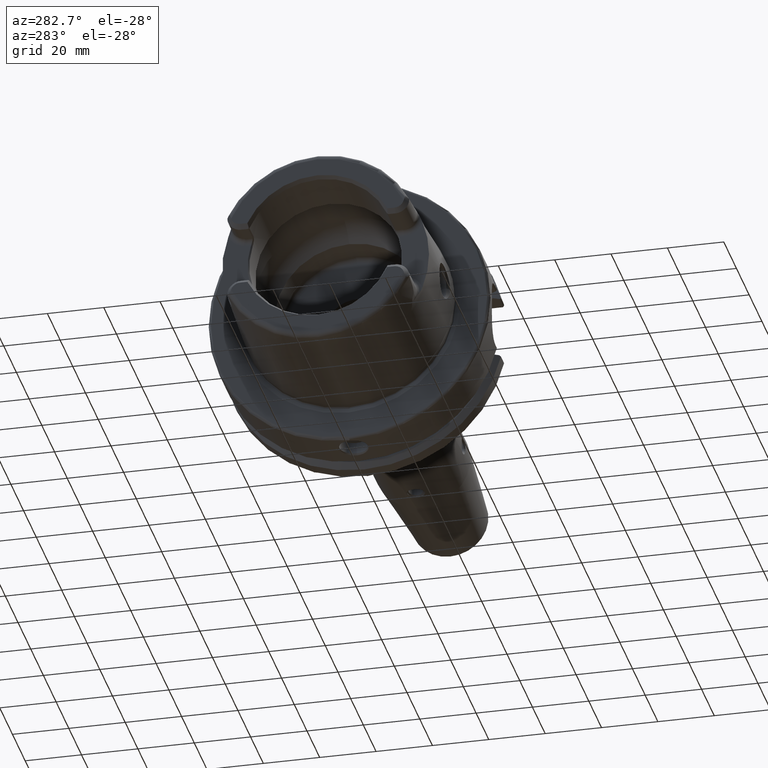
[diagram: clean part render]
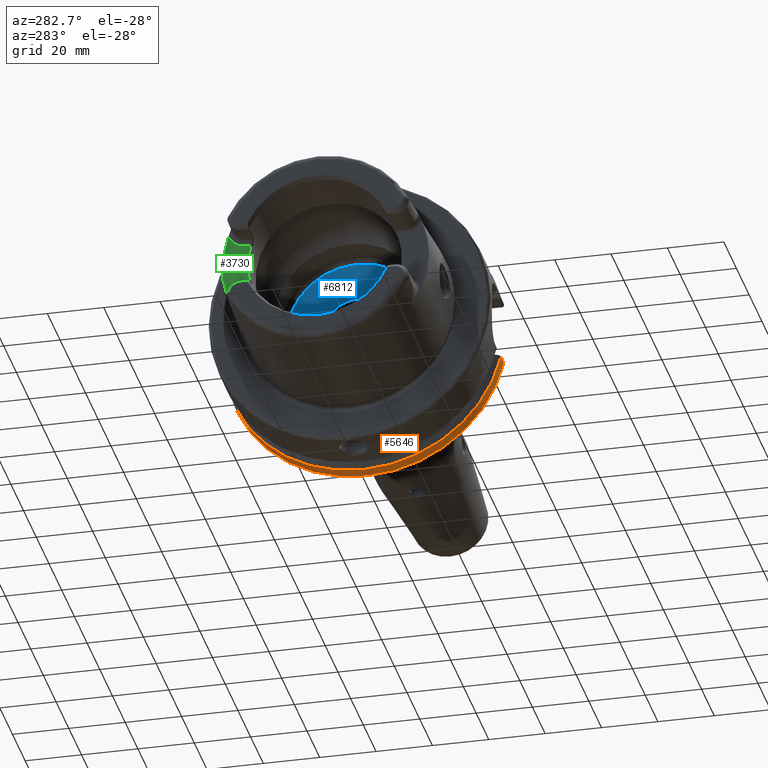
[diagram: same view with three faces highlighted in distinct colors, each labeled with its STEP entity id]
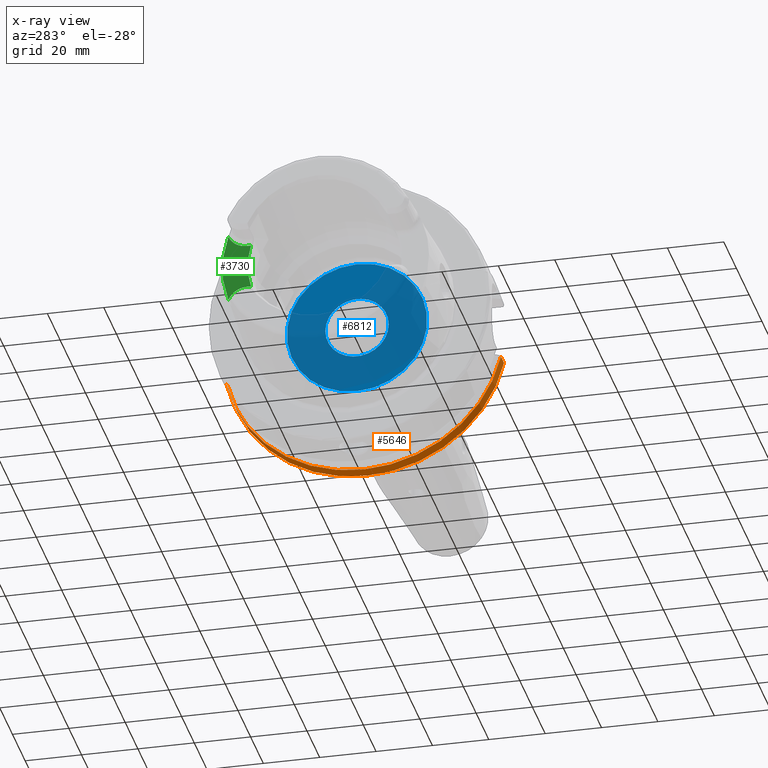
[diagram: x-ray of the same camera — body ghosted, the three highlighted faces saturated]
A machine part, auxiliary view with three faces highlighted in distinct colors.
The next image is the same camera in x-ray (body ghosted, the three faces saturated) — at least one of them is partly hidden behind the body in this view.
Their STEP definitions:

[orange] entity #5646 — the highlighted cylindrical surface (partial cylindrical patch) has radius 50 mm, axis along (1, 0, 0).
#1952=CARTESIAN_POINT('',(2.8E1,0.E0,0.E0));
#1953=DIRECTION('',(-1.E0,0.E0,0.E0));
#1954=DIRECTION('',(0.E0,9.781062299454E-1,-2.081062299454E-1));
#1955=AXIS2_PLACEMENT_3D('',#1952,#1953,#1954);
#1957=CARTESIAN_POINT('',(2.8E1,0.E0,0.E0));
#1958=DIRECTION('',(-1.E0,0.E0,0.E0));
#1959=DIRECTION('',(0.E0,0.E0,-1.E0));
#1960=AXIS2_PLACEMENT_3D('',#1957,#1958,#1959);
#1962=DIRECTION('',(-1.E0,-8.372686127246E-14,9.793052523832E-14));
#1963=VECTOR('',#1962,4.752404735809E0);
#1964=CARTESIAN_POINT('',(2.8E1,4.890531149727E1,-1.040531149727E1));
#1965=LINE('',#1964,#1963);
#1966=DIRECTION('',(1.E0,-1.270854144314E-13,8.933357073267E-14));
#1967=VECTOR('',#1966,4.752404735809E0);
#1968=CARTESIAN_POINT('',(2.324759526419E1,-4.866725793949E1,
-1.146725793949E1));
#1969=LINE('',#1968,#1967);
#2090=CARTESIAN_POINT('',(2.324759526419E1,0.E0,0.E0));
#2091=DIRECTION('',(1.E0,0.E0,0.E0));
#2092=DIRECTION('',(0.E0,-9.733451587899E-1,-2.293451587898E-1));
#2093=AXIS2_PLACEMENT_3D('',#2090,#2091,#2092);
#2095=CARTESIAN_POINT('',(2.324759526419E1,0.E0,0.E0));
#2096=DIRECTION('',(1.E0,0.E0,0.E0));
#2097=DIRECTION('',(0.E0,0.E0,-1.E0));
#2098=AXIS2_PLACEMENT_3D('',#2095,#2096,#2097);
#3250=CARTESIAN_POINT('',(2.8E1,4.890531149727E1,-1.040531149727E1));
#3251=CARTESIAN_POINT('',(2.8E1,-2.842170943040E-14,-5.E1));
#3252=VERTEX_POINT('',#3250);
#3253=VERTEX_POINT('',#3251);
#3254=CARTESIAN_POINT('',(2.8E1,-4.866725793949E1,-1.146725793949E1));
#3255=VERTEX_POINT('',#3254);
#3256=CARTESIAN_POINT('',(2.324759526419E1,4.890531149727E1,-1.040531149727E1));
#3257=VERTEX_POINT('',#3256);
#3258=CARTESIAN_POINT('',(2.324759526419E1,-4.866725793949E1,
-1.146725793949E1));
#3259=CARTESIAN_POINT('',(2.324759526419E1,-2.842170943040E-14,-5.E1));
#3260=VERTEX_POINT('',#3258);
#3261=VERTEX_POINT('',#3259);
#5629=CARTESIAN_POINT('',(0.E0,0.E0,0.E0));
#5630=DIRECTION('',(1.E0,0.E0,0.E0));
#5631=DIRECTION('',(0.E0,0.E0,1.E0));
#5632=AXIS2_PLACEMENT_3D('',#5629,#5630,#5631);
#5633=CYLINDRICAL_SURFACE('',#5632,5.E1);
#5634=ORIENTED_EDGE('',*,*,#5615,.F.);
#5635=ORIENTED_EDGE('',*,*,#5613,.F.);
#5637=ORIENTED_EDGE('',*,*,#5636,.T.);
#5639=ORIENTED_EDGE('',*,*,#5638,.F.);
#5641=ORIENTED_EDGE('',*,*,#5640,.F.);
#5643=ORIENTED_EDGE('',*,*,#5642,.T.);
#5644=EDGE_LOOP('',(#5634,#5635,#5637,#5639,#5641,#5643));
#5645=FACE_OUTER_BOUND('',#5644,.F.);
#5646=ADVANCED_FACE('',(#5645),#5633,.T.);
#1956=CIRCLE('',#1955,5.E1);
#1961=CIRCLE('',#1960,5.E1);
#2094=CIRCLE('',#2093,5.E1);
#2099=CIRCLE('',#2098,5.E1);
#5613=EDGE_CURVE('',#3252,#3253,#1956,.T.);
#5615=EDGE_CURVE('',#3253,#3255,#1961,.T.);
#5636=EDGE_CURVE('',#3252,#3257,#1965,.T.);
#5638=EDGE_CURVE('',#3261,#3257,#2099,.T.);
#5640=EDGE_CURVE('',#3260,#3261,#2094,.T.);
#5642=EDGE_CURVE('',#3260,#3255,#1969,.T.);

[blue] entity #6812 — the highlighted planar face has unit normal (1, 0, 0).
#2729=CARTESIAN_POINT('',(1.25E1,0.E0,0.E0));
#2730=DIRECTION('',(1.E0,0.E0,0.E0));
#2731=DIRECTION('',(0.E0,0.E0,1.E0));
#2732=AXIS2_PLACEMENT_3D('',#2729,#2730,#2731);
#2734=CARTESIAN_POINT('',(1.25E1,0.E0,0.E0));
#2735=DIRECTION('',(1.E0,0.E0,0.E0));
#2736=DIRECTION('',(0.E0,0.E0,-1.E0));
#2737=AXIS2_PLACEMENT_3D('',#2734,#2735,#2736);
#2739=CARTESIAN_POINT('',(1.25E1,0.E0,0.E0));
#2740=DIRECTION('',(-1.E0,0.E0,0.E0));
#2741=DIRECTION('',(0.E0,1.E0,0.E0));
#2742=AXIS2_PLACEMENT_3D('',#2739,#2740,#2741);
#2744=CARTESIAN_POINT('',(1.25E1,0.E0,0.E0));
#2745=DIRECTION('',(-1.E0,0.E0,0.E0));
#2746=DIRECTION('',(0.E0,-1.E0,0.E0));
#2747=AXIS2_PLACEMENT_3D('',#2744,#2745,#2746);
#3555=CARTESIAN_POINT('',(1.25E1,-1.125E1,0.E0));
#3556=VERTEX_POINT('',#3555);
#3557=CARTESIAN_POINT('',(1.25E1,1.125E1,0.E0));
#3558=VERTEX_POINT('',#3557);
#3559=CARTESIAN_POINT('',(1.25E1,0.E0,2.49E1));
#3560=CARTESIAN_POINT('',(1.25E1,0.E0,-2.49E1));
#3561=VERTEX_POINT('',#3559);
#3562=VERTEX_POINT('',#3560);
#6797=CARTESIAN_POINT('',(1.25E1,0.E0,0.E0));
#6798=DIRECTION('',(1.E0,0.E0,0.E0));
#6799=DIRECTION('',(0.E0,0.E0,1.E0));
#6800=AXIS2_PLACEMENT_3D('',#6797,#6798,#6799);
#6801=PLANE('',#6800);
#6803=ORIENTED_EDGE('',*,*,#6802,.T.);
#6805=ORIENTED_EDGE('',*,*,#6804,.T.);
#6806=EDGE_LOOP('',(#6803,#6805));
#6807=FACE_OUTER_BOUND('',#6806,.F.);
#6808=ORIENTED_EDGE('',*,*,#6777,.T.);
#6809=ORIENTED_EDGE('',*,*,#6791,.T.);
#6810=EDGE_LOOP('',(#6808,#6809));
#6811=FACE_BOUND('',#6810,.F.);
#6812=ADVANCED_FACE('',(#6807,#6811),#6801,.F.);
#2733=CIRCLE('',#2732,2.49E1);
#2738=CIRCLE('',#2737,2.49E1);
#2743=CIRCLE('',#2742,1.125E1);
#2748=CIRCLE('',#2747,1.125E1);
#6777=EDGE_CURVE('',#3558,#3556,#2743,.T.);
#6791=EDGE_CURVE('',#3556,#3558,#2748,.T.);
#6802=EDGE_CURVE('',#3561,#3562,#2733,.T.);
#6804=EDGE_CURVE('',#3562,#3561,#2738,.T.);

[green] entity #3730 — the highlighted planar face has unit normal (1, 0, 0).
#47=CARTESIAN_POINT('',(-4.E1,3.378887757492E1,1.241362953537E1));
#208=CARTESIAN_POINT('',(-4.E1,-3.108624468950E-13,-6.261657858886E-14));
#209=DIRECTION('',(-1.E0,0.E0,0.E0));
#210=DIRECTION('',(0.E0,9.549810813063E-1,2.966667058282E-1));
#211=AXIS2_PLACEMENT_3D('',#208,#209,#210);
#213=DIRECTION('',(-9.119444218507E-10,1.E0,3.151026424189E-7));
#214=VECTOR('',#213,1.585510683775E0);
#215=CARTESIAN_POINT('',(-3.999999999855E1,2.578448931815E1,-8.010000605217E0));
#216=LINE('',#215,#214);
#217=CARTESIAN_POINT('',(-4.E1,2.737E1,-1.489E1));
#218=DIRECTION('',(-1.E0,0.E0,0.E0));
#219=DIRECTION('',(0.E0,8.382070231703E-10,1.E0));
#220=AXIS2_PLACEMENT_3D('',#217,#218,#219);
#222=CARTESIAN_POINT('',(-4.E1,2.737E1,-1.489E1));
#223=DIRECTION('',(-1.E0,0.E0,0.E0));
#224=DIRECTION('',(0.E0,8.212570373432E-1,5.705583919410E-1));
#225=AXIS2_PLACEMENT_3D('',#222,#223,#224);
#227=CARTESIAN_POINT('',(-4.E1,0.E0,0.E0));
#228=DIRECTION('',(1.E0,0.E0,0.E0));
#229=DIRECTION('',(0.E0,9.386572714715E-1,-3.448514560120E-1));
#230=AXIS2_PLACEMENT_3D('',#227,#228,#229);
#232=CARTESIAN_POINT('',(-4.E1,2.737E1,1.489E1));
#233=DIRECTION('',(-1.E0,0.E0,0.E0));
#234=DIRECTION('',(0.E0,9.329763917043E-1,-3.599375675341E-1));
#235=AXIS2_PLACEMENT_3D('',#232,#233,#234);
#237=CARTESIAN_POINT('',(-4.E1,2.737E1,1.489E1));
#238=DIRECTION('',(-1.E0,0.E0,0.E0));
#239=DIRECTION('',(0.E0,8.213451203199E-1,-5.704315851412E-1));
#240=AXIS2_PLACEMENT_3D('',#237,#238,#239);
#967=DIRECTION('',(-1.711314084373E-9,9.999999999998E-1,-5.992052510904E-7));
#968=VECTOR('',#967,1.585510770501E0);
#969=CARTESIAN_POINT('',(-3.999999999729E1,2.578448923036E1,8.010000950150E0));
#970=LINE('',#969,#968);
#3013=VERTEX_POINT('',#47);
#3014=CARTESIAN_POINT('',(-4.E1,3.378887757492E1,-1.241362953536E1));
#3015=VERTEX_POINT('',#3014);
#3040=CARTESIAN_POINT('',(-4.E1,3.302024841692E1,-1.096455826345E1));
#3041=VERTEX_POINT('',#3040);
#3042=CARTESIAN_POINT('',(-4.E1,2.737000000577E1,-8.01E0));
#3043=VERTEX_POINT('',#3042);
#3044=CARTESIAN_POINT('',(-4.E1,2.578448919527E1,8.010001057361E0));
#3045=CARTESIAN_POINT('',(-4.E1,2.578448932743E1,-8.010000631937E0));
#3046=VERTEX_POINT('',#3044);
#3047=VERTEX_POINT('',#3045);
#3048=CARTESIAN_POINT('',(-4.E1,3.302085442780E1,1.096543069423E1));
#3049=VERTEX_POINT('',#3048);
#3050=CARTESIAN_POINT('',(-4.E1,2.737000000257E1,8.01E0));
#3051=VERTEX_POINT('',#3050);
#3710=CARTESIAN_POINT('',(-4.E1,0.E0,1.001E1));
#3711=DIRECTION('',(1.E0,0.E0,0.E0));
#3712=DIRECTION('',(0.E0,0.E0,-1.E0));
#3713=AXIS2_PLACEMENT_3D('',#3710,#3711,#3712);
#3714=PLANE('',#3713);
#3716=ORIENTED_EDGE('',*,*,#3715,.T.);
#3718=ORIENTED_EDGE('',*,*,#3717,.T.);
#3719=ORIENTED_EDGE('',*,*,#3700,.T.);
#3720=ORIENTED_EDGE('',*,*,#3698,.T.);
#3721=ORIENTED_EDGE('',*,*,#3594,.T.);
#3723=ORIENTED_EDGE('',*,*,#3722,.T.);
#3725=ORIENTED_EDGE('',*,*,#3724,.T.);
#3727=ORIENTED_EDGE('',*,*,#3726,.F.);
#3728=EDGE_LOOP('',(#3716,#3718,#3719,#3720,#3721,#3723,#3725,#3727));
#3729=FACE_OUTER_BOUND('',#3728,.F.);
#3730=ADVANCED_FACE('',(#3729),#3714,.F.);
#212=CIRCLE('',#211,2.7E1);
#221=CIRCLE('',#220,6.88E0);
#226=CIRCLE('',#225,6.88E0);
#231=CIRCLE('',#230,3.599703385023E1);
#236=CIRCLE('',#235,6.88E0);
#241=CIRCLE('',#240,6.88E0);
#3594=EDGE_CURVE('',#3015,#3013,#231,.T.);
#3698=EDGE_CURVE('',#3041,#3015,#226,.T.);
#3700=EDGE_CURVE('',#3043,#3041,#221,.T.);
#3715=EDGE_CURVE('',#3046,#3047,#212,.T.);
#3717=EDGE_CURVE('',#3047,#3043,#216,.T.);
#3722=EDGE_CURVE('',#3013,#3049,#236,.T.);
#3724=EDGE_CURVE('',#3049,#3051,#241,.T.);
#3726=EDGE_CURVE('',#3046,#3051,#970,.T.);